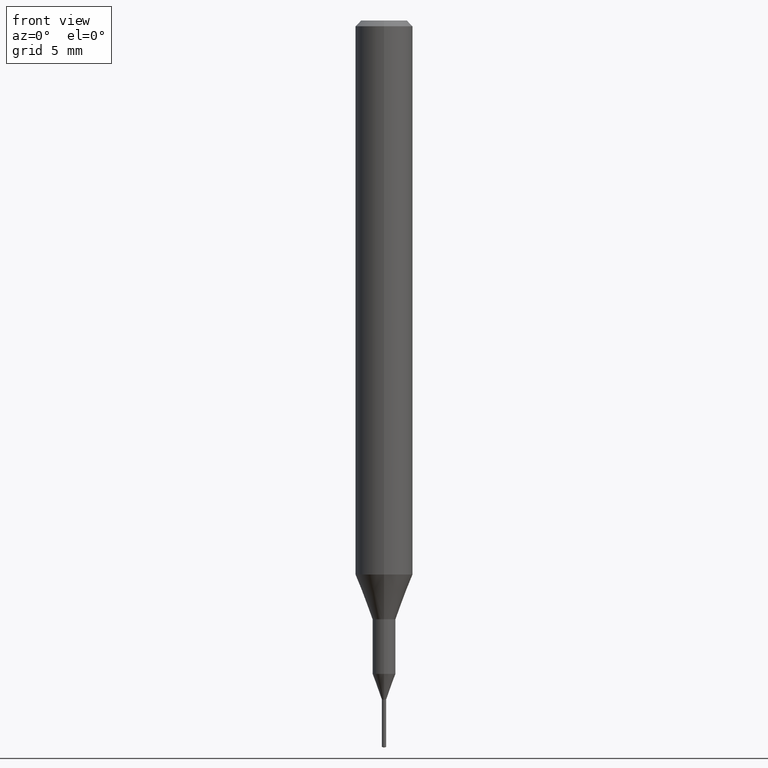
[diagram: clean part render]
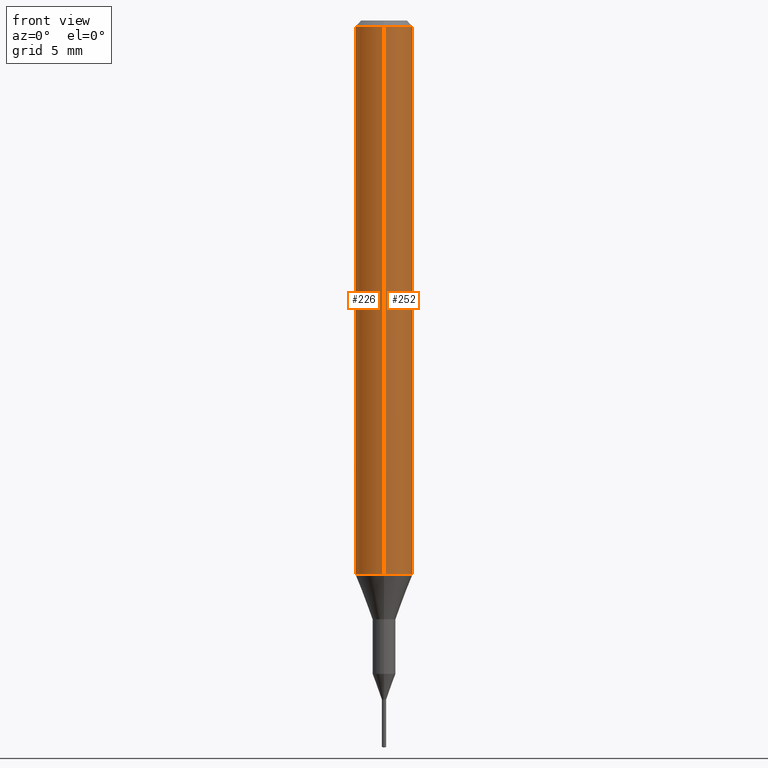
[diagram: same view with one multi-face feature highlighted, each face labeled with its STEP entity id]
A machine part, front view. The highlighted faces form ONE feature: a constant-radius fillet chain: 2 tangent blend faces with common blend radius 1.5 mm. The faces share edges in the B-rep.
Their STEP definitions:
[1] entity #226 (Cylinder):
#130=EDGE_CURVE('',#150,#234,#310,.T.);
#150=VERTEX_POINT('',#330);
#154=VERTEX_POINT('',#334);
#192=VERTEX_POINT('',#379);
#198=EDGE_CURVE('',#154,#234,#387,.T.);
#226=ADVANCED_FACE('',(#418),#419,.T.);
#228=EDGE_CURVE('',#192,#154,#421,.T.);
#234=VERTEX_POINT('',#427);
#266=EDGE_CURVE('',#150,#192,#464,.T.);
#310=CIRCLE('',#506,1.5);
#330=CARTESIAN_POINT('',(1.83690953073357E-016,-1.5,-28.955));
#334=CARTESIAN_POINT('',(0.0,1.5,-0.300000000000001));
#379=CARTESIAN_POINT('',(1.83690953073357E-016,-1.5,-0.300000000000001));
#387=LINE('',#604,#605);
#418=FACE_OUTER_BOUND('',#643,.T.);
#419=CYLINDRICAL_SURFACE('',#644,1.5);
#421=CIRCLE('',#647,1.5);
#427=CARTESIAN_POINT('',(0.0,1.5,-28.955));
#464=LINE('',#701,#702);
#506=AXIS2_PLACEMENT_3D('',#745,#746,#747);
#604=CARTESIAN_POINT('',(-1.83690953073357E-016,1.5,-14.6275));
#605=VECTOR('',#835,1.0);
#643=EDGE_LOOP('',(#872,#873,#874,#875));
#644=AXIS2_PLACEMENT_3D('',#876,#877,#878);
#647=AXIS2_PLACEMENT_3D('',#879,#880,#881);
#701=CARTESIAN_POINT('',(1.83690953073357E-016,-1.5,-14.6275));
#702=VECTOR('',#936,1.0);
#745=CARTESIAN_POINT('',(0.0,0.0,-28.955));
#746=DIRECTION('',(0.0,0.0,-1.0));
#747=DIRECTION('',(0.0,1.0,0.0));
#835=DIRECTION('',(0.0,0.0,-1.0));
#872=ORIENTED_EDGE('',*,*,#198,.T.);
#873=ORIENTED_EDGE('',*,*,#130,.F.);
#874=ORIENTED_EDGE('',*,*,#266,.T.);
#875=ORIENTED_EDGE('',*,*,#228,.T.);
#876=CARTESIAN_POINT('',(0.0,0.0,-14.6275));
#877=DIRECTION('',(-0.0,-0.0,1.0));
#878=DIRECTION('',(0.0,1.0,0.0));
#879=CARTESIAN_POINT('',(0.0,0.0,-0.300000000000001));
#880=DIRECTION('',(0.0,0.0,-1.0));
#881=DIRECTION('',(0.0,1.0,0.0));
#936=DIRECTION('',(-0.0,-0.0,1.0));
[2] entity #252 (Cylinder):
#146=EDGE_CURVE('',#154,#192,#326,.T.);
#150=VERTEX_POINT('',#330);
#154=VERTEX_POINT('',#334);
#174=EDGE_CURVE('',#234,#150,#360,.T.);
#192=VERTEX_POINT('',#379);
#198=EDGE_CURVE('',#154,#234,#387,.T.);
#234=VERTEX_POINT('',#427);
#252=ADVANCED_FACE('',(#446),#447,.T.);
#266=EDGE_CURVE('',#150,#192,#464,.T.);
#326=CIRCLE('',#529,1.5);
#330=CARTESIAN_POINT('',(1.83690953073357E-016,-1.5,-28.955));
#334=CARTESIAN_POINT('',(0.0,1.5,-0.300000000000001));
#360=CIRCLE('',#565,1.5);
#379=CARTESIAN_POINT('',(1.83690953073357E-016,-1.5,-0.300000000000001));
#387=LINE('',#604,#605);
#427=CARTESIAN_POINT('',(0.0,1.5,-28.955));
#446=FACE_OUTER_BOUND('',#677,.T.);
#447=CYLINDRICAL_SURFACE('',#678,1.5);
#464=LINE('',#701,#702);
#529=AXIS2_PLACEMENT_3D('',#755,#756,#757);
#565=AXIS2_PLACEMENT_3D('',#809,#810,#811);
#604=CARTESIAN_POINT('',(-1.83690953073357E-016,1.5,-14.6275));
#605=VECTOR('',#835,1.0);
#677=EDGE_LOOP('',(#901,#902,#903,#904));
#678=AXIS2_PLACEMENT_3D('',#905,#906,#907);
#701=CARTESIAN_POINT('',(1.83690953073357E-016,-1.5,-14.6275));
#702=VECTOR('',#936,1.0);
#755=CARTESIAN_POINT('',(0.0,0.0,-0.300000000000001));
#756=DIRECTION('',(0.0,0.0,-1.0));
#757=DIRECTION('',(0.0,1.0,0.0));
#809=CARTESIAN_POINT('',(0.0,0.0,-28.955));
#810=DIRECTION('',(0.0,0.0,-1.0));
#811=DIRECTION('',(0.0,1.0,0.0));
#835=DIRECTION('',(0.0,0.0,-1.0));
#901=ORIENTED_EDGE('',*,*,#198,.F.);
#902=ORIENTED_EDGE('',*,*,#146,.T.);
#903=ORIENTED_EDGE('',*,*,#266,.F.);
#904=ORIENTED_EDGE('',*,*,#174,.F.);
#905=CARTESIAN_POINT('',(0.0,0.0,-14.6275));
#906=DIRECTION('',(-0.0,-0.0,1.0));
#907=DIRECTION('',(0.0,1.0,0.0));
#936=DIRECTION('',(-0.0,-0.0,1.0));